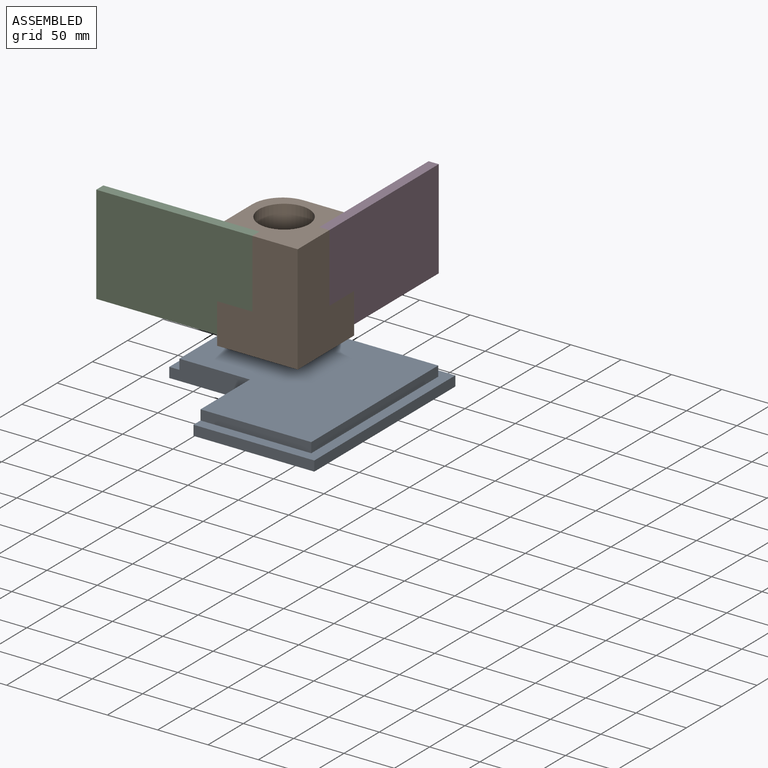
[diagram: assembled view]
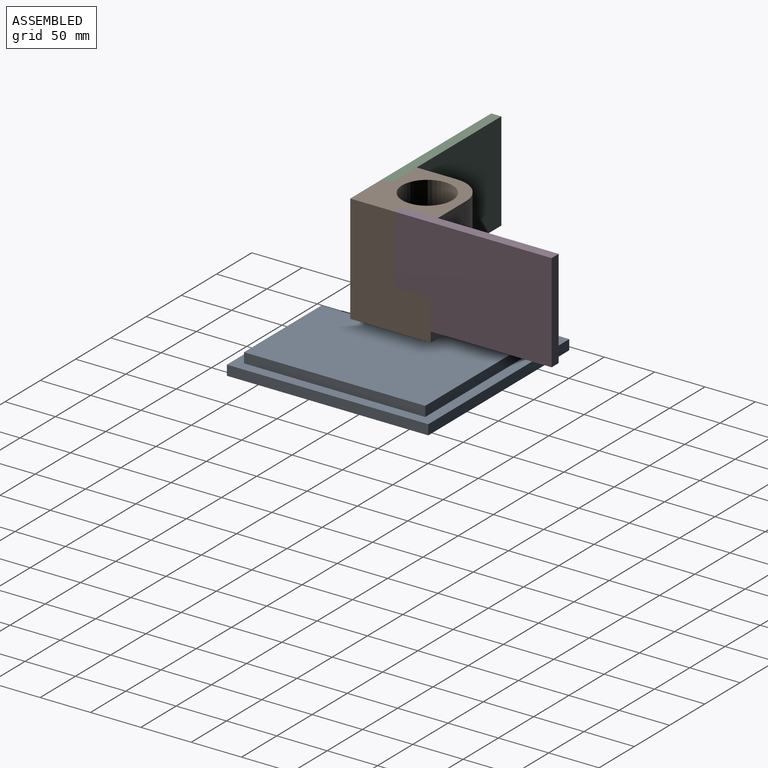
[diagram: assembled view, second angle]
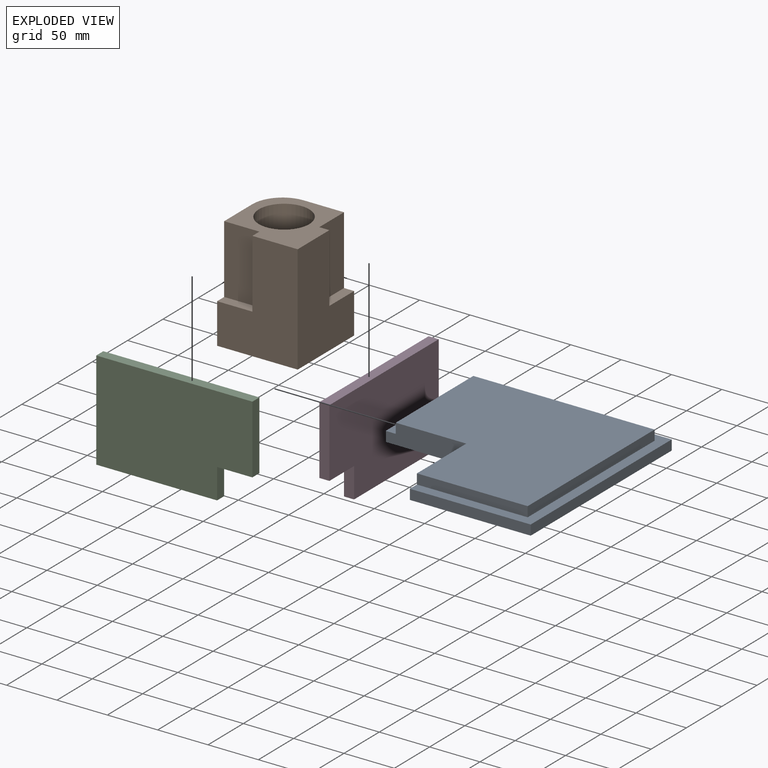
[diagram: exploded view]
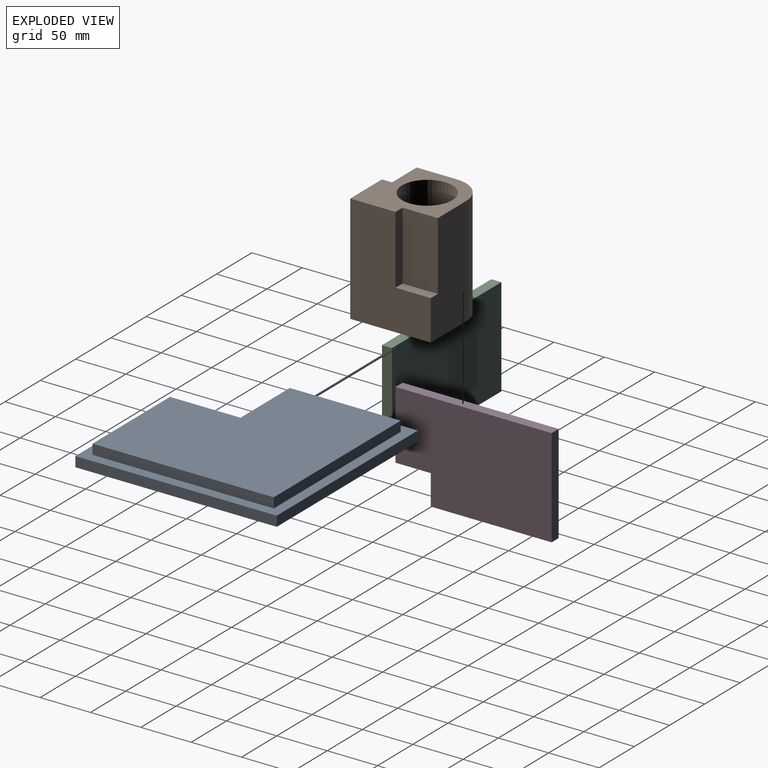
[diagram: exploded view, second angle]
ASSEMBLY  parts=4 mates=2
PART A: 13 faces, bbox 200x200x20 mm
  f0: plane 200x200mm, normal (0,0,1), area 6100mm2, adj f1,f2,f3,f4,f5,f6,f8,f9
  f1: plane 200x10mm, normal (1,0,0), area 2000mm2, adj f0,f2,f6,f7
  f2: plane 200x10mm, normal (0,1,0), area 2000mm2, adj f0,f1,f3,f7
  f3: plane 120x10mm, normal (-1,0,0), area 1200mm2, adj f0,f2,f4,f7
  f4: plane 80x20mm, normal (0,-1,0), area 1500mm2, adj f0,f3,f5,f7,f11,f12
  f5: plane 80x20mm, normal (-1,0,0), area 1500mm2, adj f0,f4,f6,f7,f8,f12
  f6: plane 120x10mm, normal (0,-1,0), area 1200mm2, adj f0,f1,f5,f7
  f7: plane 200x200mm, normal (0,0,-1), area 33600mm2, adj f1,f2,f3,f4,f5,f6
  f8: plane 110x10mm, normal (0,-1,0), area 1100mm2, adj f0,f5,f9,f12
  f9: plane 180x10mm, normal (1,0,0), area 1800mm2, adj f0,f8,f10,f12
  f10: plane 180x10mm, normal (0,1,0), area 1800mm2, adj f0,f9,f11,f12
  f11: plane 110x10mm, normal (-1,0,0), area 1100mm2, adj f0,f4,f10,f12
  f12: plane 180x180mm, normal (0,0,1), area 27500mm2, adj f4,f5,f8,f9,f10,f11
PART B: 14 faces, bbox 80x80x108 mm
  f0: plane 108x80mm, normal (0,-1,0), area 6260mm2, adj f1,f6,f9,f10,f11,f12
  f1: plane 108x80mm, normal (1,0,0), area 6260mm2, adj f0,f2,f4,f10,f11,f13
  f2: plane 68x10mm, normal (0,1,0), area 680mm2, adj f1,f3,f10,f13
  f3: plane 68x35mm, normal (1,0,0), area 2380mm2, adj f2,f4,f10,f13
  f4: plane 108x50mm, normal (0,1,0), area 4720mm2, adj f1,f3,f5,f10,f11,f13
  f5: cylinder r=30mm len=108mm, axis (0,0,-1), area 5089.4mm2, adj f4,f6,f10,f11
  f6: plane 108x50mm, normal (-1,0,0), area 4720mm2, adj f0,f5,f7,f10,f11,f12
  f7: plane 68x35mm, normal (0,-1,0), area 2380mm2, adj f6,f9,f10,f12
  f8: cylinder r=25mm len=108mm, axis (0,0,-1), area 16964.6mm2, adj f10,f11
  f9: plane 68x10mm, normal (-1,0,0), area 680mm2, adj f0,f7,f10,f12
  f10: plane 80x80mm, normal (0,0,1), area 3543.4mm2, adj f0,f1,f2,f3,f4,f5,f6,f7
  f11: plane 80x80mm, normal (0,0,-1), area 4243.4mm2, adj f0,f1,f4,f5,f6,f8
  f12: plane 35x10mm, normal (0,0,1), area 350mm2, adj f0,f6,f7,f9
  f13: plane 35x10mm, normal (0,0,1), area 350mm2, adj f1,f2,f3,f4
PART C: 8 faces, bbox 155x10x98 mm
  f0: plane 120x10mm, normal (0,0,-1), area 1200mm2, adj f1,f3,f4,f6
  f1: plane 155x98mm, normal (0,-1,0), area 14140mm2, adj f0,f2,f4,f5,f6,f7
  f2: plane 68x10mm, normal (1,0,0), area 680mm2, adj f1,f3,f5,f7
  f3: plane 155x98mm, normal (0,1,0), area 14140mm2, adj f0,f2,f4,f5,f6,f7
  f4: plane 98x10mm, normal (-1,0,0), area 980mm2, adj f0,f1,f3,f5
  f5: plane 155x10mm, normal (0,0,1), area 1550mm2, adj f1,f2,f3,f4
  f6: plane 30x10mm, normal (1,0,0), area 300mm2, adj f0,f1,f3,f7
  f7: plane 35x10mm, normal (0,0,-1), area 350mm2, adj f1,f2,f3,f6
PART D: same geometry as C
PLACE A t=(67.93,-132.07,-76.04)mm
PLACE B t=(-0.7,-57.63,-31.25)mm
PLACE C t=(-45.7,-57.63,-21.25)mm
PLACE D rot(axis=(0,0,-1),90deg) t=(-10.7,-12.63,-21.25)mm
MATE fastened B.f12 <-> C.f7  axis (0,0,1) through (-45.7,-57.63,8.75)mm
MATE fastened D.f7 <-> B.f13  axis (0,0,-1) through (-0.7,-12.63,8.75)mm
